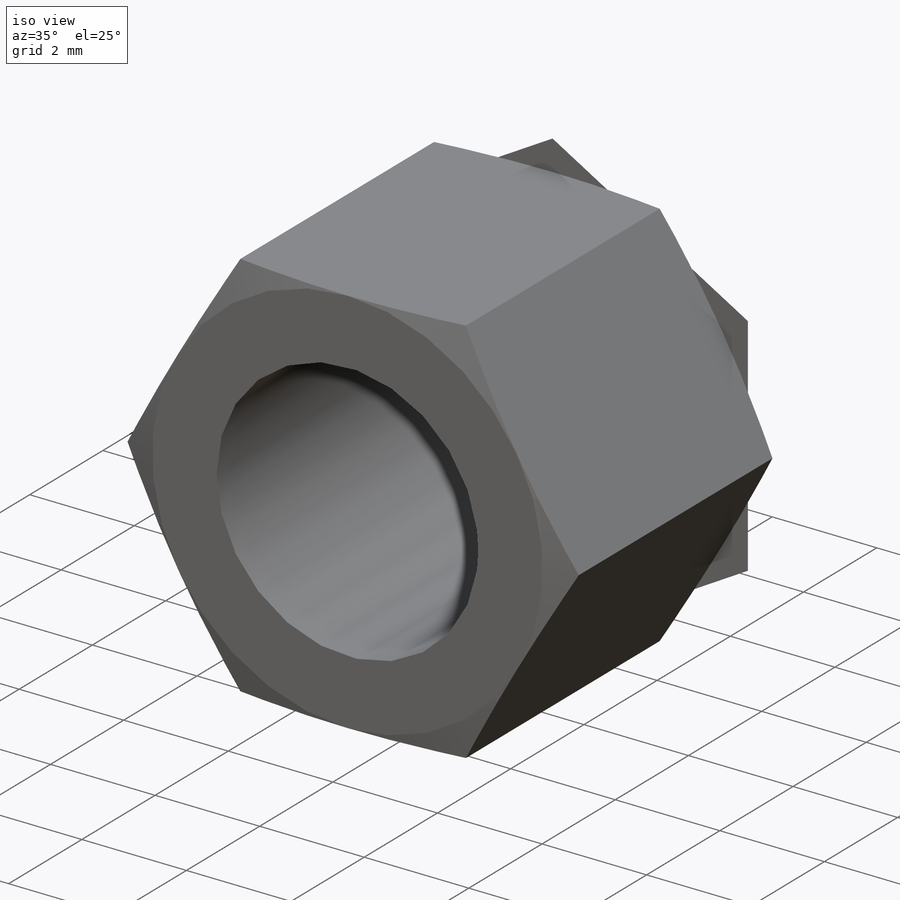
[diagram: iso view]
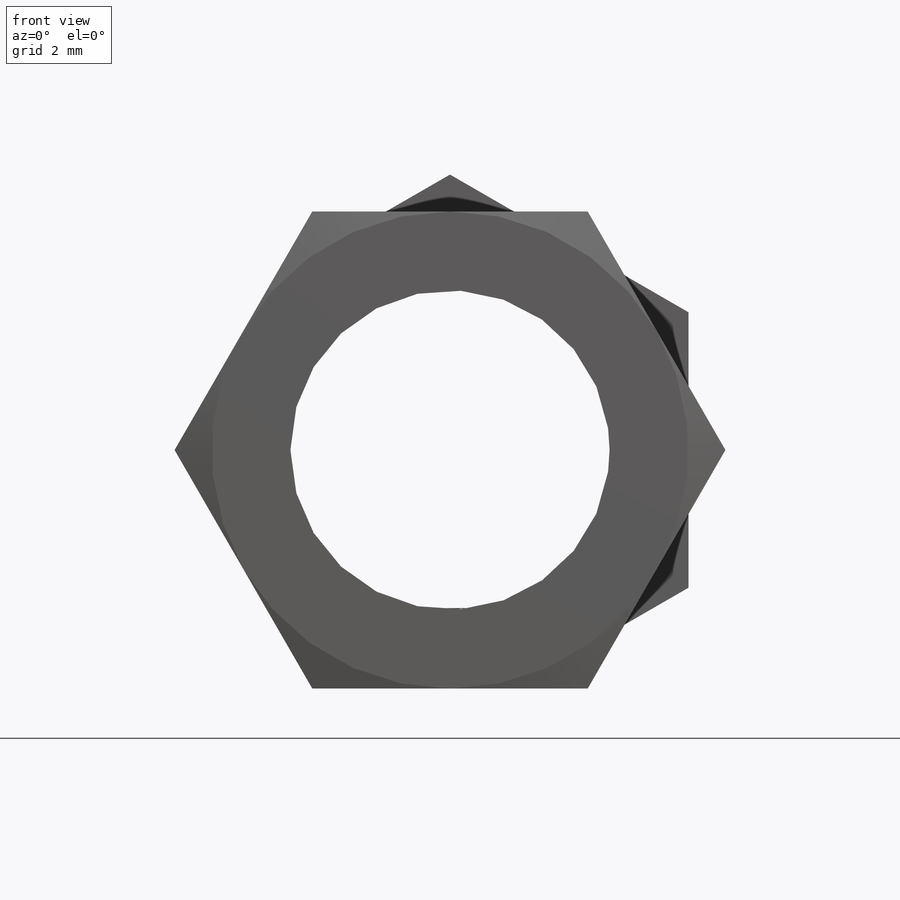
[diagram: front view]
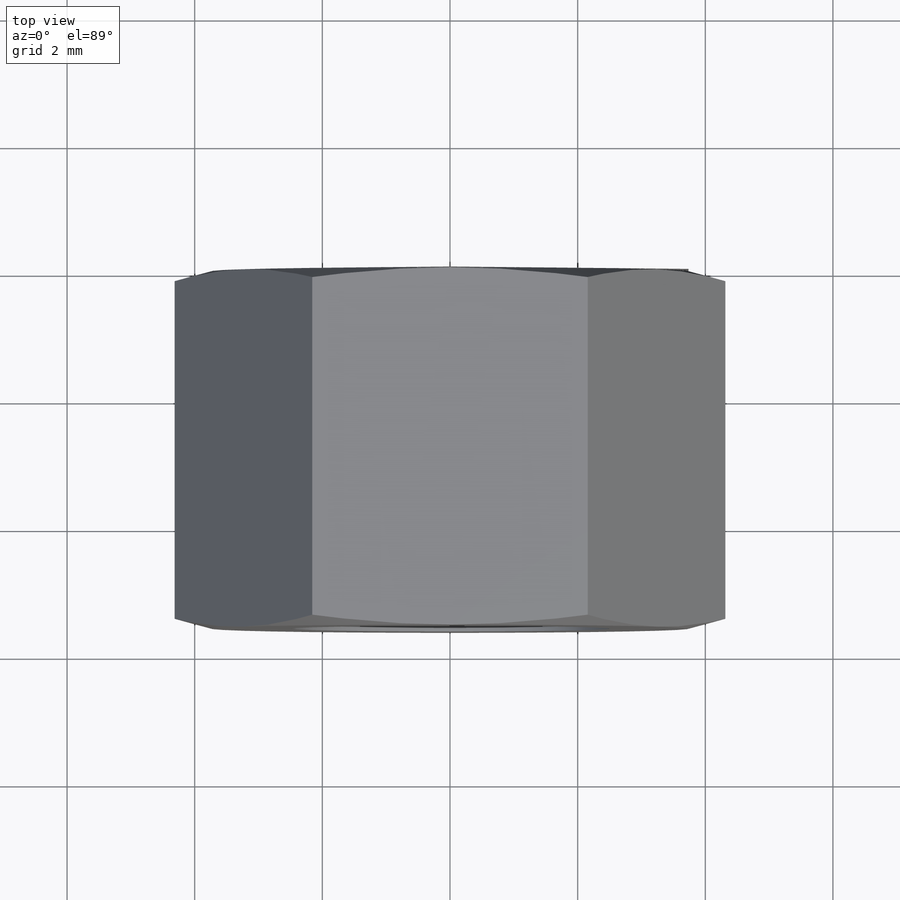
[diagram: top view]
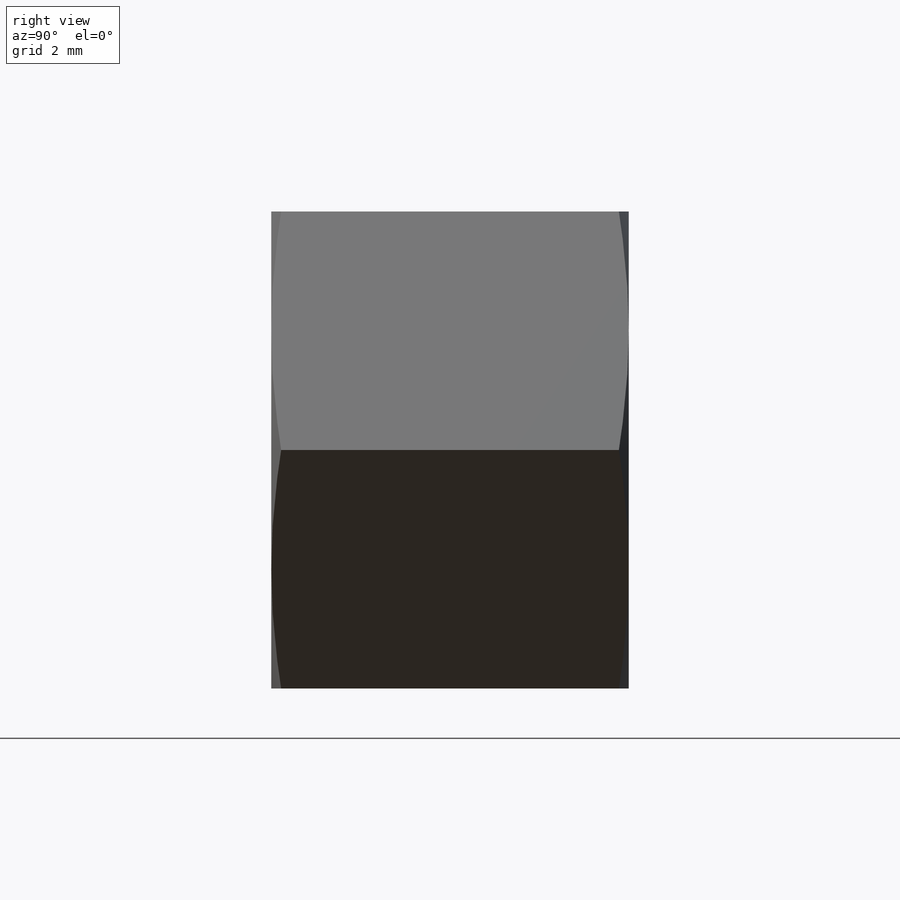
[diagram: right view]
SOLIDWORKS PART (.sldprt)
format: sldprt  version: not decoded by parser v0  size: 219,648 bytes
history: native  units: mm
features: sketch x4, plane x3, cut_extrude x2, material x1, extrude x1, thread x1, chamfer x1 (+10 scaffold rows collapsed)
feature tree (23):
  scaffold x10  (default folders/planes/origin — collapsed)
  material  "4级"
  plane  "基准面1"
  plane  "基准面2"
  plane  "基准面3"
  sketch  "尺寸草图"  dims[D=5.0mm P1=1.5mm e=8.63mm m=5.6mm mw=6.4mm s=8.0mm]
  sketch  "草图1"  dims[D=5.0mm e=8.63mm D1=~15.233387mm]
  extrude  "基体-拉伸"  [1 undecoded]
  thread  "装饰螺纹线1"  Diameter=5.25mm m=5.6mm  [1 undecoded]
  sketch  "草图2"  dims[s=92.8mm D2=15.57mm]
  cut_extrude  "切除-拉伸1"  Depth=38mm
  sketch  "草图3"  dims[D1=92.8mm]
  cut_extrude  "切除-拉伸2"  Depth=38mm
  chamfer  "倒角1"  Distance=0.2mm Angle=45deg
decode coverage: 8 of 9 modeling features carry decoded parameters
note: ~ marks probable driven/reference dimensions
note: 2 parameter values undecoded
note: suppression state not decoded; provenance and decode notes live in map.json
